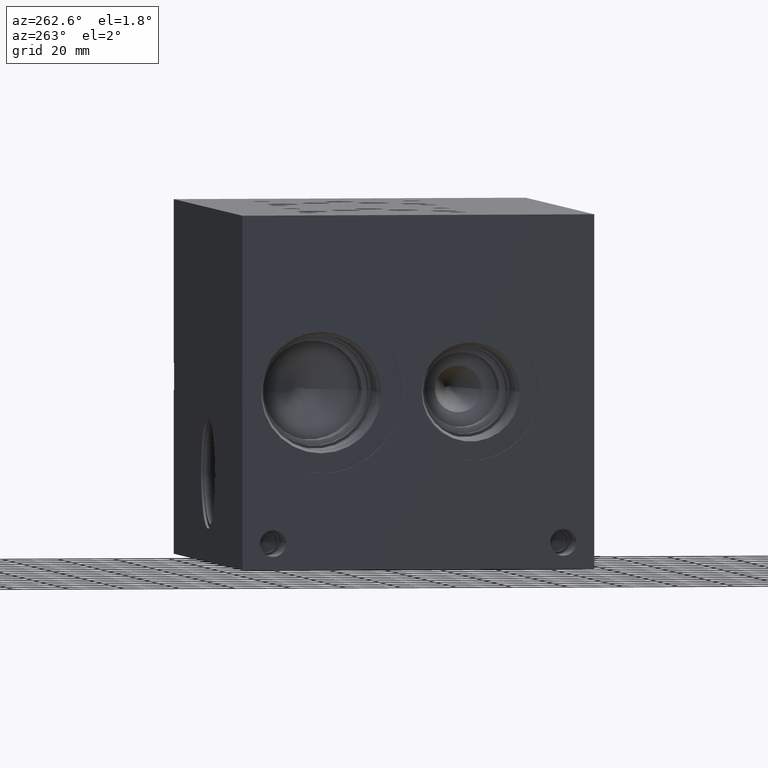
[diagram: clean part render]
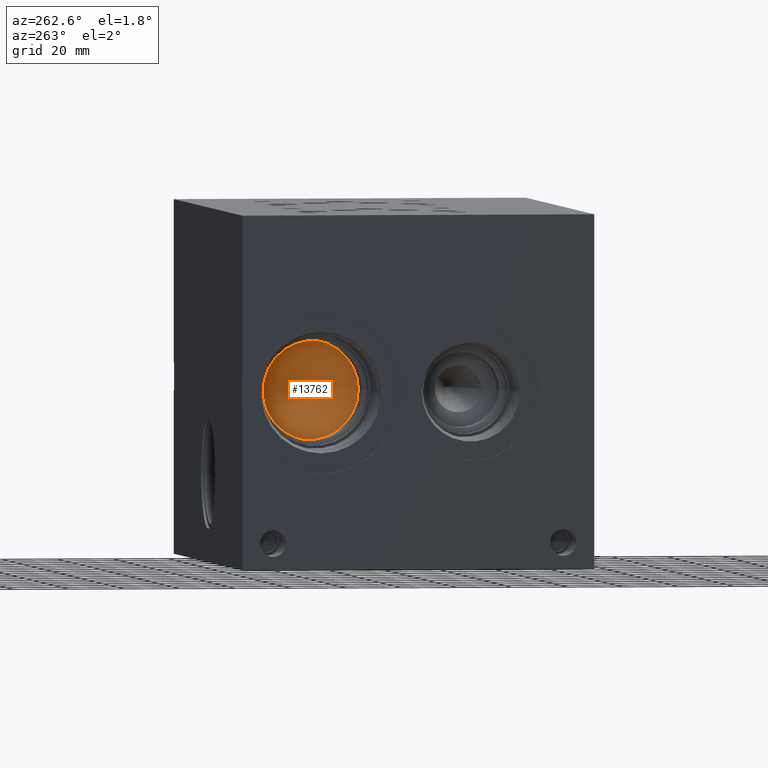
[diagram: same view with one face highlighted and labeled with its STEP entity id]
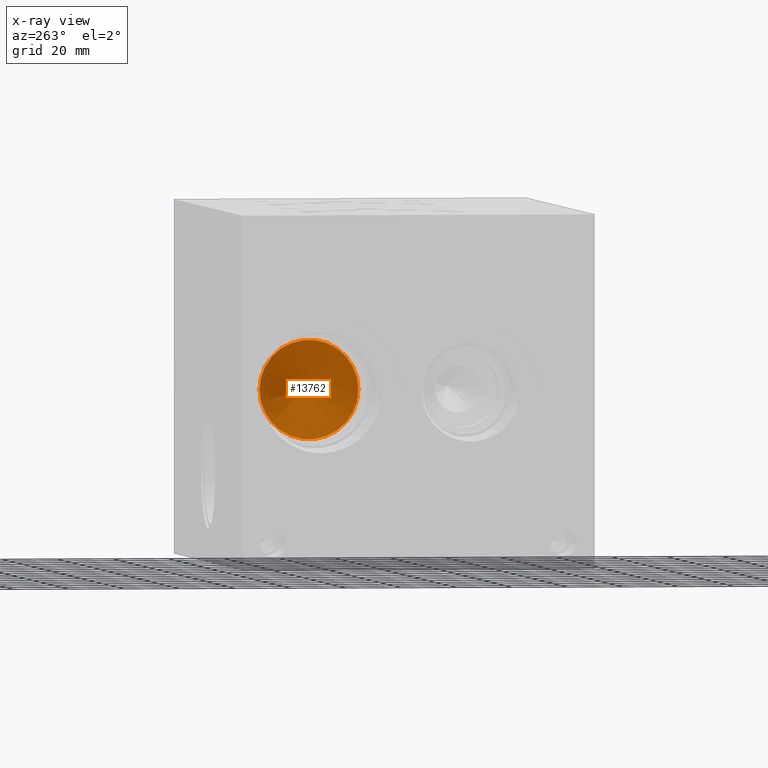
[diagram: x-ray of the same camera — body ghosted, the highlighted face saturated]
A machine part, auxiliary view. The second image highlights one B-rep face of the part: STEP entity #13762.
The next image is the same camera in x-ray: the body ghosted, the highlighted face saturated — about 3% of this face is hidden behind the body in this view.
In plain terms, the highlighted conical surface has half-angle 60 deg.
Its self-contained STEP definition (entity closure, byte-faithful):
#77=CONICAL_SURFACE('',#14608,8.9281,1.0471975511966);
#473=CIRCLE('',#14609,17.8562);
#474=CIRCLE('',#14610,17.8562);
#1856=FACE_OUTER_BOUND('',#2659,.T.);
#2659=EDGE_LOOP('',(#12060,#12061,#12062,#12063));
#3903=LINE('',#23858,#5123);
#5123=VECTOR('',#17486,8.9281);
#6428=VERTEX_POINT('',#23854);
#6429=VERTEX_POINT('',#23855);
#6430=VERTEX_POINT('',#23857);
#8330=EDGE_CURVE('',#6428,#6429,#473,.T.);
#8331=EDGE_CURVE('',#6429,#6430,#3903,.T.);
#8332=EDGE_CURVE('',#6429,#6428,#474,.T.);
#12060=ORIENTED_EDGE('',*,*,#8330,.T.);
#12061=ORIENTED_EDGE('',*,*,#8331,.T.);
#12062=ORIENTED_EDGE('',*,*,#8331,.F.);
#12063=ORIENTED_EDGE('',*,*,#8332,.T.);
#13762=ADVANCED_FACE('',(#1856),#77,.F.);
#14608=AXIS2_PLACEMENT_3D('',#23853,#17482,#17483);
#14609=AXIS2_PLACEMENT_3D('',#23856,#17484,#17485);
#14610=AXIS2_PLACEMENT_3D('',#23859,#17487,#17488);
#17482=DIRECTION('center_axis',(-1.,0.,0.));
#17483=DIRECTION('ref_axis',(0.,1.,0.));
#17484=DIRECTION('center_axis',(-1.,0.,0.));
#17485=DIRECTION('ref_axis',(0.,1.,0.));
#17486=DIRECTION('',(0.5,0.866025403784439,-1.06057523872491E-16));
#17487=DIRECTION('center_axis',(-1.,0.,0.));
#17488=DIRECTION('ref_axis',(0.,1.,0.));
#23853=CARTESIAN_POINT('Origin',(40.2828409383519,98.425,63.5));
#23854=CARTESIAN_POINT('',(35.1282,116.2812,63.5));
#23855=CARTESIAN_POINT('',(35.1282,80.5688,63.5));
#23856=CARTESIAN_POINT('Origin',(35.1282,98.425,63.5));
#23857=CARTESIAN_POINT('',(45.4374818767038,98.425,63.5));
#23858=CARTESIAN_POINT('',(40.2828409383519,89.4969,63.5));
#23859=CARTESIAN_POINT('Origin',(35.1282,98.425,63.5));